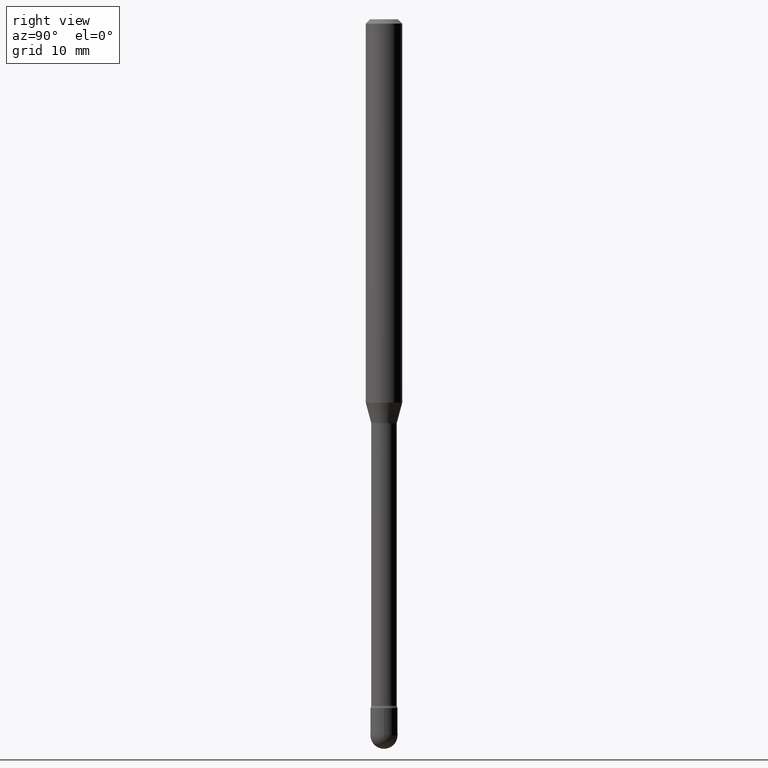
[diagram: clean part render]
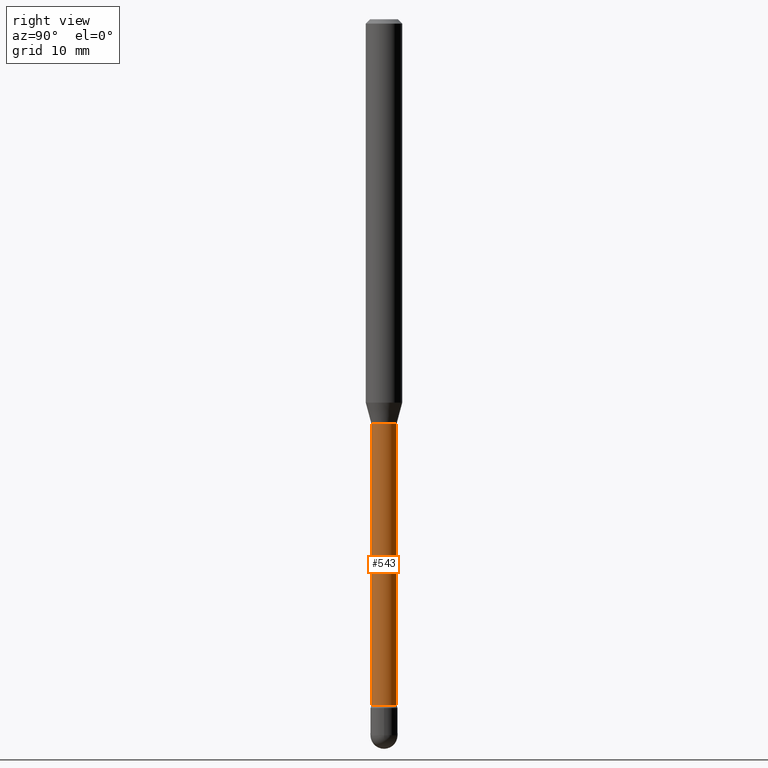
[diagram: same view with one face highlighted and labeled with its STEP entity id]
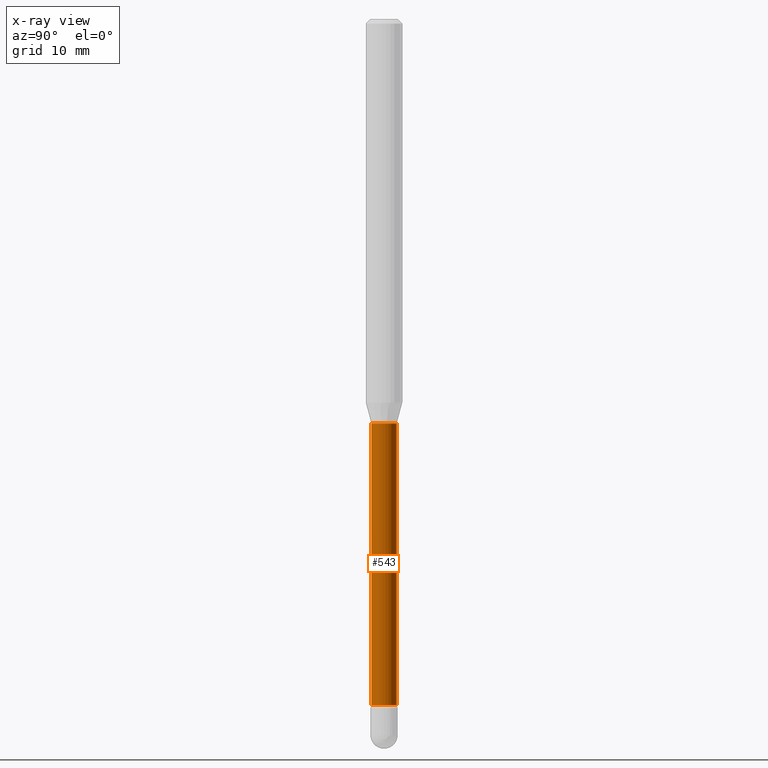
[diagram: x-ray of the same camera — body ghosted, the highlighted face saturated]
A machine part, right view. The second image highlights one B-rep face of the part: STEP entity #543.
The next image is the same camera in x-ray: the body ghosted, the highlighted face saturated — about 0% of this face is hidden behind the body in this view.
In plain terms, the highlighted cylindrical surface (edge-blend (fillet) strip) has radius 1.11 mm, axis along (-0, 0, 1).
Its self-contained STEP definition (entity closure, byte-faithful):
#25 = CARTESIAN_POINT ( 'NONE',  ( 3.204547738278631736E-16, 0.04369999999999193974, -2.351273030308291823 ) ) ;
#63 = VERTEX_POINT ( 'NONE', #397 ) ;
#66 = DIRECTION ( 'NONE',  ( -2.445440307037586333E-29, 3.491522151244508533E-15, 1.000000000000000000 ) ) ;
#91 = CARTESIAN_POINT ( 'NONE',  ( -3.051554690148559469E-16, -0.04370000000000483914, -1.385974787463810864 ) ) ;
#92 = LINE ( 'NONE', #398, #401 ) ;
#158 = VERTEX_POINT ( 'NONE', #25 ) ;
#160 = FACE_OUTER_BOUND ( 'NONE', #366, .T. ) ;
#192 = CARTESIAN_POINT ( 'NONE',  ( 3.105071755272217326E-16, 0.04369999999999515938, -1.385974787463811309 ) ) ;
#234 = EDGE_CURVE ( 'NONE', #63, #158, #334, .T. ) ;
#245 = EDGE_CURVE ( 'NONE', #63, #501, #396, .T. ) ;
#258 = CARTESIAN_POINT ( 'NONE',  ( 5.749897841166304022E-29, -8.209521868945201254E-15, -2.351273030308291823 ) ) ;
#259 = ORIENTED_EDGE ( 'NONE', *, *, #418, .T. ) ;
#278 = DIRECTION ( 'NONE',  ( -2.445440307037586053E-29, 3.491522151244508533E-15, 1.000000000000000000 ) ) ;
#292 = ORIENTED_EDGE ( 'NONE', *, *, #234, .T. ) ;
#334 = CIRCLE ( 'NONE', #564, 0.04370000000000015539 ) ;
#342 = ORIENTED_EDGE ( 'NONE', *, *, #245, .F. ) ;
#346 = EDGE_CURVE ( 'NONE', #501, #524, #512, .T. ) ;
#366 = EDGE_LOOP ( 'NONE', ( #292, #259, #416, #342 ) ) ;
#379 = DIRECTION ( 'NONE',  ( -2.445440307037586333E-29, 3.491522151244508533E-15, 1.000000000000000000 ) ) ;
#385 = AXIS2_PLACEMENT_3D ( 'NONE', #464, #66, #520 ) ;
#396 = LINE ( 'NONE', #521, #428 ) ;
#397 = CARTESIAN_POINT ( 'NONE',  ( -3.051554690148333657E-16, -0.04370000000000836410, -2.351273030308291379 ) ) ;
#398 = CARTESIAN_POINT ( 'NONE',  ( 3.105071755271642937E-16, 0.04370000000000007906, 3.254938808818607835E-16 ) ) ;
#401 = VECTOR ( 'NONE', #278, 39.37007874015748143 ) ;
#416 = ORIENTED_EDGE ( 'NONE', *, *, #346, .F. ) ;
#418 = EDGE_CURVE ( 'NONE', #158, #524, #92, .T. ) ;
#423 = DIRECTION ( 'NONE',  ( -2.445440307037586053E-29, 3.491522151244508533E-15, 1.000000000000000000 ) ) ;
#428 = VECTOR ( 'NONE', #423, 39.37007874015748143 ) ;
#464 = CARTESIAN_POINT ( 'NONE',  ( -1.169113584055446105E-44, 1.669184350826100908E-30, 4.780733988912460139E-16 ) ) ;
#488 = DIRECTION ( 'NONE',  ( -2.445440307037586333E-29, 3.491522151244508533E-15, 1.000000000000000000 ) ) ;
#501 = VERTEX_POINT ( 'NONE', #91 ) ;
#510 = CYLINDRICAL_SURFACE ( 'NONE', #385, 0.04370000000000007906 ) ;
#512 = CIRCLE ( 'NONE', #533, 0.04370000000000000273 ) ;
#517 = DIRECTION ( 'NONE',  ( -6.982962677686265922E-15, -1.000000000000000000, 6.251368406554355696E-15 ) ) ;
#520 = DIRECTION ( 'NONE',  ( -6.982962677686265922E-15, -1.000000000000000000, 3.491522151244508533E-15 ) ) ;
#521 = CARTESIAN_POINT ( 'NONE',  ( -3.051554690148903609E-16, -0.04370000000000007906, 6.306529169006313429E-16 ) ) ;
#523 = CARTESIAN_POINT ( 'NONE',  ( 3.389318609801855919E-29, -4.839161671496296399E-15, -1.385974787463811086 ) ) ;
#524 = VERTEX_POINT ( 'NONE', #192 ) ;
#531 = DIRECTION ( 'NONE',  ( -6.982962677686266711E-15, -1.000000000000000000, 6.251368406554377784E-15 ) ) ;
#533 = AXIS2_PLACEMENT_3D ( 'NONE', #523, #488, #531 ) ;
#543 = ADVANCED_FACE ( 'NONE', ( #160 ), #510, .T. ) ;
#564 = AXIS2_PLACEMENT_3D ( 'NONE', #258, #379, #517 ) ;